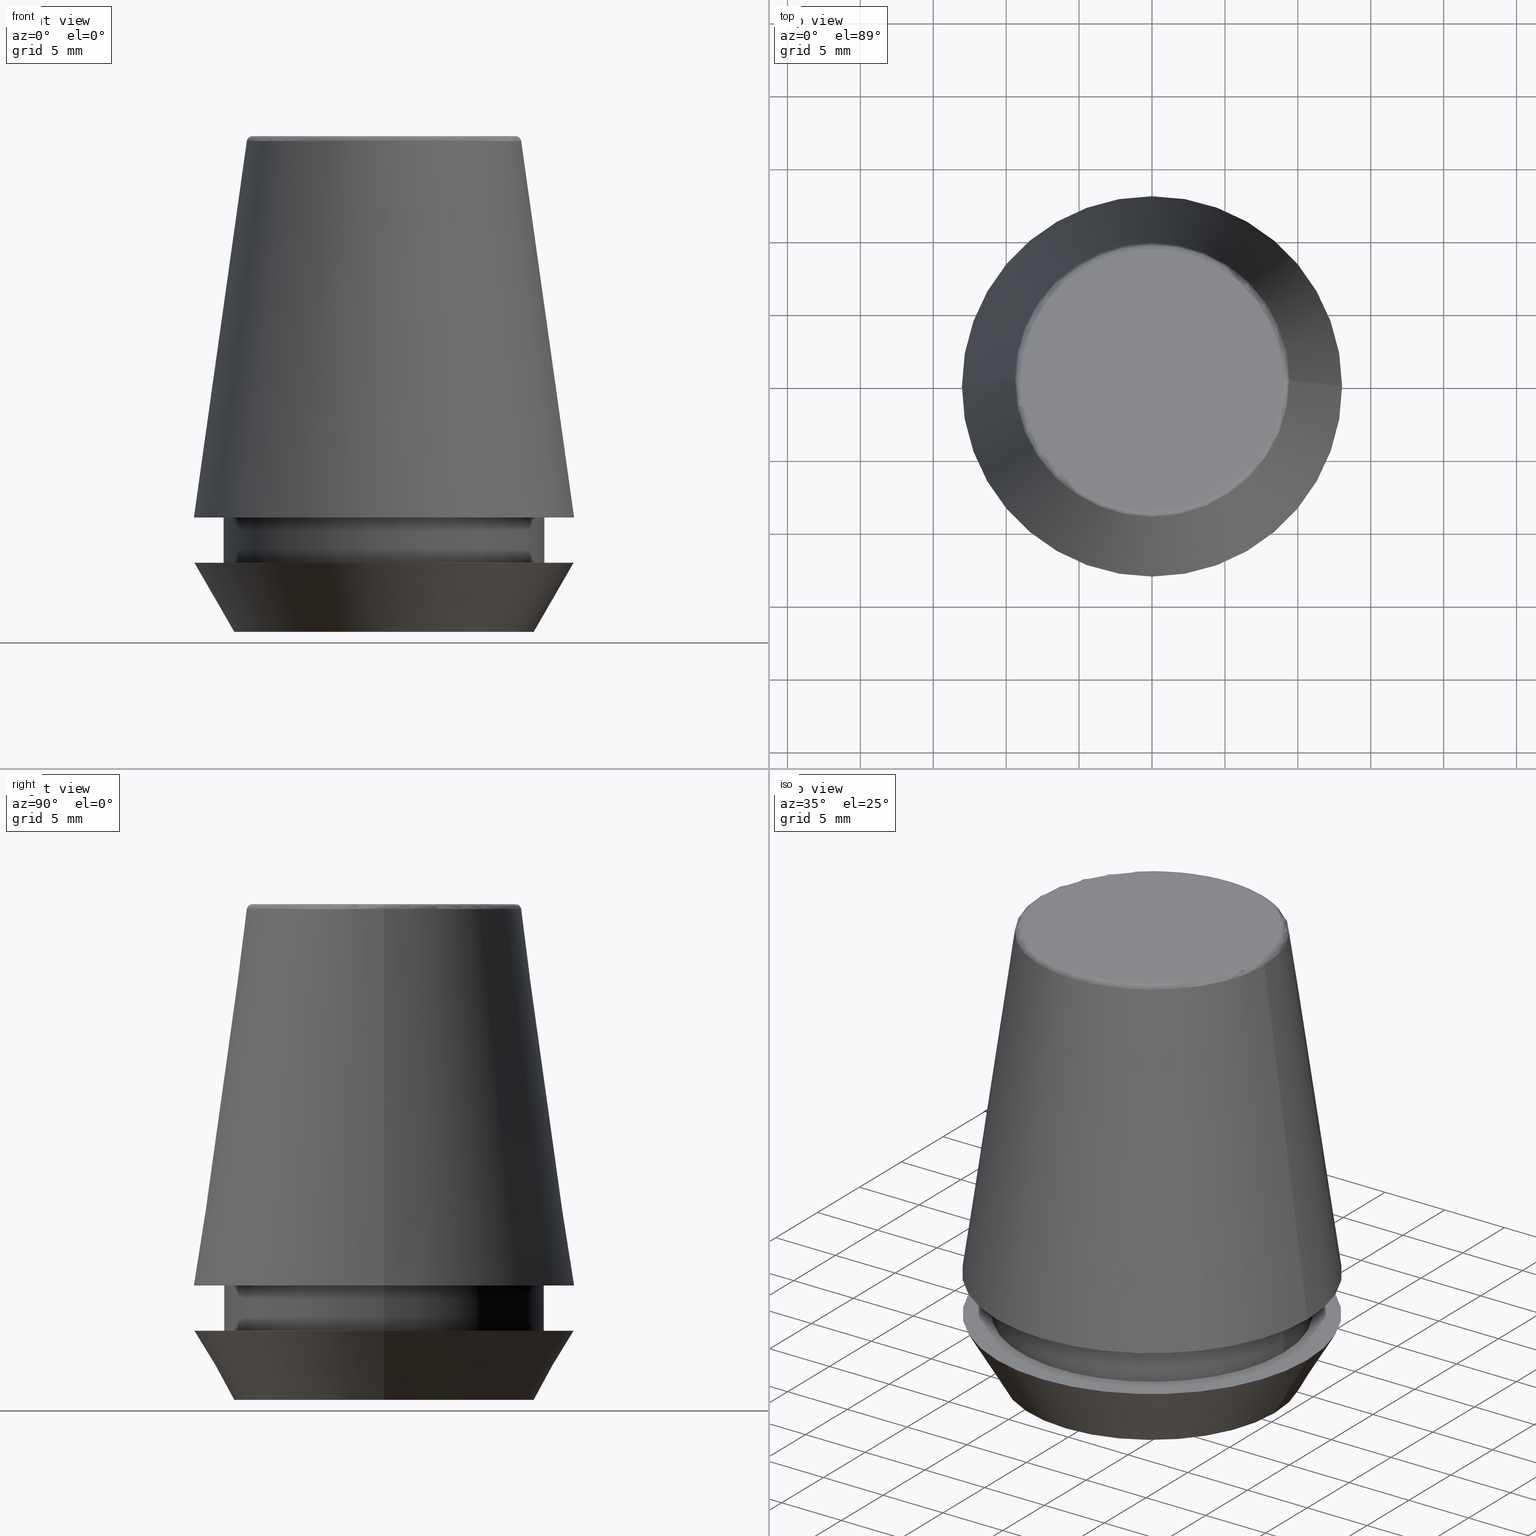
[diagram: canonical four-view strip — front | top / right | iso, engineering-drawing reading convention]
A machine part, canonical four-view strip (front | top / right | iso — engineering-drawing reading convention). The complete STEP part file that produces these views, byte-faithful:
ISO-10303-21;
HEADER;
FILE_DESCRIPTION (( 'STEP AP203' ),
    '1' );
FILE_NAME ('TAP COLLET ER 25G  6.3  X 5.0.STEP',
    '2019-04-09T09:55:54',
    ( '' ),
    ( '' ),
    'SwSTEP 2.0',
    'SolidWorks 2014',
    '' );
FILE_SCHEMA (( 'CONFIG_CONTROL_DESIGN' ));
ENDSEC;

DATA;
#1 = DIRECTION ( 'NONE',  ( 1.000000000000000000, 0.0000000000000000000, 0.0000000000000000000 ) ) ;
#2 = CARTESIAN_POINT ( 'NONE',  ( 0.0000000000000000000, 0.0000000000000000000, 33.65566924038402900 ) ) ;
#3 = ORIENTED_EDGE ( 'NONE', *, *, #218, .T. ) ;
#4 = CARTESIAN_POINT ( 'NONE',  ( 0.0000000000000000000, 0.0000000000000000000, 4.742050807568884500 ) ) ;
#5 = AXIS2_PLACEMENT_3D ( 'NONE', #154, #356, #94 ) ;
#6 = CC_DESIGN_PERSON_AND_ORGANIZATION_ASSIGNMENT ( #191, #219, ( #22 ) ) ;
#7 = DIRECTION ( 'NONE',  ( 1.224646799147353200E-016, 1.000000000000000000, 0.0000000000000000000 ) ) ;
#8 = COORDINATED_UNIVERSAL_TIME_OFFSET ( 5, 30, .AHEAD. ) ;
#9 = DIRECTION ( 'NONE',  ( -0.0000000000000000000, -0.0000000000000000000, 1.000000000000000000 ) ) ;
#10 = DIRECTION ( 'NONE',  ( -0.0000000000000000000, -0.0000000000000000000, 1.000000000000000000 ) ) ;
#11 =( GEOMETRIC_REPRESENTATION_CONTEXT ( 3 ) GLOBAL_UNCERTAINTY_ASSIGNED_CONTEXT ( ( #250 ) ) GLOBAL_UNIT_ASSIGNED_CONTEXT ( ( #288, #24, #52 ) ) REPRESENTATION_CONTEXT ( 'NONE', 'WORKASPACE' ) );
#12 = EDGE_LOOP ( 'NONE', ( #207, #27 ) ) ;
#13 = DIRECTION ( 'NONE',  ( 0.0000000000000000000, -0.0000000000000000000, 1.000000000000000000 ) ) ;
#14 = DESIGN_CONTEXT ( 'detailed design', #200, 'design' ) ;
#15 = ORIENTED_EDGE ( 'NONE', *, *, #232, .F. ) ;
#16 = ORIENTED_EDGE ( 'NONE', *, *, #201, .T. ) ;
#17 = DIRECTION ( 'NONE',  ( 1.000000000000000000, 0.0000000000000000000, 0.0000000000000000000 ) ) ;
#18 = ADVANCED_FACE ( 'NONE', ( #80 ), #193, .T. ) ;
#19 = CIRCLE ( 'NONE', #275, 11.00000000000000000 ) ;
#20 = ORIENTED_EDGE ( 'NONE', *, *, #316, .F. ) ;
#21 = COORDINATED_UNIVERSAL_TIME_OFFSET ( 5, 30, .AHEAD. ) ;
#22 = SECURITY_CLASSIFICATION ( '', '', #23 ) ;
#23 = SECURITY_CLASSIFICATION_LEVEL ( 'unclassified' ) ;
#24 =( NAMED_UNIT ( * ) PLANE_ANGLE_UNIT ( ) SI_UNIT ( $, .RADIAN. ) );
#25 = ORIENTED_EDGE ( 'NONE', *, *, #218, .F. ) ;
#26 = AXIS2_PLACEMENT_3D ( 'NONE', #87, #262, #39 ) ;
#27 = ORIENTED_EDGE ( 'NONE', *, *, #268, .F. ) ;
#28 = CARTESIAN_POINT ( 'NONE',  ( 0.0000000000000000000, 0.0000000000000000000, 7.842050807568876200 ) ) ;
#29 = DIRECTION ( 'NONE',  ( 1.000000000000000000, 0.0000000000000000000, 0.0000000000000000000 ) ) ;
#30 = MANIFOLD_SOLID_BREP ( 'Revolve1', #342 ) ;
#31 = CYLINDRICAL_SURFACE ( 'NONE', #169, 11.00000000000000000 ) ;
#32 = APPROVAL_PERSON_ORGANIZATION ( #143, #64, #344 ) ;
#33 = CARTESIAN_POINT ( 'NONE',  ( 0.0000000000000000000, 0.0000000000000000000, 4.742050807568884500 ) ) ;
#34 = ADVANCED_FACE ( 'NONE', ( #46 ), #282, .T. ) ;
#35 = CARTESIAN_POINT ( 'NONE',  ( 0.0000000000000000000, 0.0000000000000000000, 0.0000000000000000000 ) ) ;
#36 = DIRECTION ( 'NONE',  ( -0.0000000000000000000, -0.0000000000000000000, 1.000000000000000000 ) ) ;
#37 = DIRECTION ( 'NONE',  ( 0.0000000000000000000, 0.0000000000000000000, -1.000000000000000000 ) ) ;
#38 = VECTOR ( 'NONE', #47, 1000.000000000000000 ) ;
#39 = DIRECTION ( 'NONE',  ( 1.000000000000000000, 0.0000000000000000000, 0.0000000000000000000 ) ) ;
#40 = CARTESIAN_POINT ( 'NONE',  ( -9.408710285118862900, 0.0000000000000000000, 33.65566924038402900 ) ) ;
#41 = CONICAL_SURFACE ( 'NONE', #183, 13.03657776635556700, 0.1396263401595396500 ) ;
#42 = EDGE_LOOP ( 'NONE', ( #319, #112, #373, #351 ) ) ;
#43 = ORIENTED_EDGE ( 'NONE', *, *, #309, .F. ) ;
#44 = CC_DESIGN_PERSON_AND_ORGANIZATION_ASSIGNMENT ( #122, #54, ( #166 ) ) ;
#45 = CARTESIAN_POINT ( 'NONE',  ( 13.00000000000000000, 0.0000000000000000000, 4.742050807568884500 ) ) ;
#46 = FACE_OUTER_BOUND ( 'NONE', #75, .T. ) ;
#47 = DIRECTION ( 'NONE',  ( 0.1391731009600587800, 1.704378926181474000E-017, -0.9902680687415712500 ) ) ;
#48 = PERSON_AND_ORGANIZATION ( #163, #304 ) ;
#49 = ORIENTED_EDGE ( 'NONE', *, *, #256, .T. ) ;
#50 = ORIENTED_EDGE ( 'NONE', *, *, #188, .T. ) ;
#51 = PERSON_AND_ORGANIZATION ( #163, #304 ) ;
#52 =( NAMED_UNIT ( * ) SI_UNIT ( $, .STERADIAN. ) SOLID_ANGLE_UNIT ( ) );
#53 = ORIENTED_EDGE ( 'NONE', *, *, #320, .F. ) ;
#54 = PERSON_AND_ORGANIZATION_ROLE ( 'design_owner' ) ;
#55 = DIRECTION ( 'NONE',  ( 1.000000000000000000, 0.0000000000000000000, 0.0000000000000000000 ) ) ;
#56 = FACE_BOUND ( 'NONE', #220, .T. ) ;
#57 = CIRCLE ( 'NONE', #292, 9.012603057622234500 ) ;
#58 = LOCAL_TIME ( 15, 25, 54.00000000000000000, #195 ) ;
#59 = ORIENTED_EDGE ( 'NONE', *, *, #320, .T. ) ;
#60 = CC_DESIGN_APPROVAL ( #90, ( #261 ) ) ;
#61 = CYLINDRICAL_SURFACE ( 'NONE', #104, 11.00000000000000000 ) ;
#62 = VERTEX_POINT ( 'NONE', #252 ) ;
#63 = DIRECTION ( 'NONE',  ( -0.4999999999999957800, 6.123233995736714300E-017, 0.8660254037844410400 ) ) ;
#64 = APPROVAL ( #108, 'UNSPECIFIED' ) ;
#65 = CARTESIAN_POINT ( 'NONE',  ( -10.26217568973925200, 1.256754061072695800E-015, 0.0000000000000000000 ) ) ;
#66 = LINE ( 'NONE', #269, #285 ) ;
#67 = DIRECTION ( 'NONE',  ( 1.000000000000000000, 0.0000000000000000000, 0.0000000000000000000 ) ) ;
#68 = ADVANCED_FACE ( 'NONE', ( #349, #197 ), #279, .F. ) ;
#69 = CC_DESIGN_DATE_AND_TIME_ASSIGNMENT ( #206, #81, ( #22 ) ) ;
#70 = DIRECTION ( 'NONE',  ( -1.000000000000000000, 1.224646799147353200E-016, 0.0000000000000000000 ) ) ;
#71 = ORIENTED_EDGE ( 'NONE', *, *, #232, .T. ) ;
#72 = DIRECTION ( 'NONE',  ( 1.000000000000000000, 0.0000000000000000000, 0.0000000000000000000 ) ) ;
#73 = DATE_AND_TIME ( #170, #182 ) ;
#74 = DIRECTION ( 'NONE',  ( 1.000000000000000000, 0.0000000000000000000, 0.0000000000000000000 ) ) ;
#75 = EDGE_LOOP ( 'NONE', ( #43, #253, #216, #289 ) ) ;
#76 = DIRECTION ( 'NONE',  ( 1.000000000000000000, 0.0000000000000000000, 0.0000000000000000000 ) ) ;
#77 = FACE_OUTER_BOUND ( 'NONE', #42, .T. ) ;
#78 = VECTOR ( 'NONE', #36, 1000.000000000000000 ) ;
#79 = ORIENTED_EDGE ( 'NONE', *, *, #259, .F. ) ;
#80 = FACE_OUTER_BOUND ( 'NONE', #343, .T. ) ;
#81 = DATE_TIME_ROLE ( 'classification_date' ) ;
#82 = ADVANCED_FACE ( 'NONE', ( #130 ), #224, .T. ) ;
#83 = FACE_OUTER_BOUND ( 'NONE', #107, .T. ) ;
#84 = DIRECTION ( 'NONE',  ( 0.0000000000000000000, 0.0000000000000000000, -1.000000000000000000 ) ) ;
#85 = EDGE_LOOP ( 'NONE', ( #375, #312, #53, #20 ) ) ;
#86 = EDGE_LOOP ( 'NONE', ( #59, #16 ) ) ;
#87 = CARTESIAN_POINT ( 'NONE',  ( 0.0000000000000000000, 0.0000000000000000000, 0.0000000000000000000 ) ) ;
#88 = MECHANICAL_CONTEXT ( 'NONE', #352, 'mechanical' ) ;
#89 = CIRCLE ( 'NONE', #301, 13.00000000000000000 ) ;
#90 = APPROVAL ( #322, 'UNSPECIFIED' ) ;
#91 = ORIENTED_EDGE ( 'NONE', *, *, #259, .T. ) ;
#92 = VERTEX_POINT ( 'NONE', #306 ) ;
#93 = FACE_OUTER_BOUND ( 'NONE', #281, .T. ) ;
#94 = DIRECTION ( 'NONE',  ( 1.000000000000000000, 0.0000000000000000000, 0.0000000000000000000 ) ) ;
#95 = LOCAL_TIME ( 15, 25, 54.00000000000000000, #204 ) ;
#96 = DIRECTION ( 'NONE',  ( -0.0000000000000000000, -0.0000000000000000000, 1.000000000000000000 ) ) ;
#97 = DIRECTION ( 'NONE',  ( -1.000000000000000000, 0.0000000000000000000, -0.0000000000000000000 ) ) ;
#98 = CIRCLE ( 'NONE', #310, 11.00000000000000000 ) ;
#99 = CARTESIAN_POINT ( 'NONE',  ( 13.03657776635556700, 1.596520323340289600E-015, 7.842050807568876200 ) ) ;
#100 = DIRECTION ( 'NONE',  ( -0.0000000000000000000, -0.0000000000000000000, 1.000000000000000000 ) ) ;
#101 = CARTESIAN_POINT ( 'NONE',  ( 0.0000000000000000000, 0.0000000000000000000, 7.842050807568876200 ) ) ;
#102 = DIRECTION ( 'NONE',  ( -0.0000000000000000000, -0.0000000000000000000, 1.000000000000000000 ) ) ;
#103 = APPROVAL_DATE_TIME ( #73, #64 ) ;
#104 = AXIS2_PLACEMENT_3D ( 'NONE', #280, #221, #121 ) ;
#105 = EDGE_LOOP ( 'NONE', ( #71, #124, #276, #79 ) ) ;
#106 = CIRCLE ( 'NONE', #325, 9.408710285118862900 ) ;
#107 = EDGE_LOOP ( 'NONE', ( #270, #291 ) ) ;
#108 = APPROVAL_STATUS ( 'not_yet_approved' ) ;
#109 = CALENDAR_DATE ( 2019, 9, 4 ) ;
#110 = DIRECTION ( 'NONE',  ( -0.0000000000000000000, -0.0000000000000000000, 1.000000000000000000 ) ) ;
#111 = PERSON_AND_ORGANIZATION ( #163, #304 ) ;
#112 = ORIENTED_EDGE ( 'NONE', *, *, #239, .T. ) ;
#113 = PERSON_AND_ORGANIZATION ( #163, #304 ) ;
#114 = DIRECTION ( 'NONE',  ( -0.0000000000000000000, -0.0000000000000000000, 1.000000000000000000 ) ) ;
#115 = CIRCLE ( 'NONE', #355, 9.408710285118862900 ) ;
#116 = APPROVAL_STATUS ( 'not_yet_approved' ) ;
#117 = VERTEX_POINT ( 'NONE', #248 ) ;
#118 = APPROVAL_ROLE ( '' ) ;
#119 = APPROVAL_DATE_TIME ( #147, #90 ) ;
#120 = LINE ( 'NONE', #65, #362 ) ;
#121 = DIRECTION ( 'NONE',  ( 1.000000000000000000, 0.0000000000000000000, 0.0000000000000000000 ) ) ;
#122 = PERSON_AND_ORGANIZATION ( #163, #304 ) ;
#123 = ADVANCED_FACE ( 'NONE', ( #378 ), #41, .T. ) ;
#124 = ORIENTED_EDGE ( 'NONE', *, *, #138, .T. ) ;
#125 = CARTESIAN_POINT ( 'NONE',  ( -10.26217568973925200, 1.424397449982127500E-015, 0.0000000000000000000 ) ) ;
#126 = VERTEX_POINT ( 'NONE', #157 ) ;
#127 = CARTESIAN_POINT ( 'NONE',  ( 11.00000000000000000, 0.0000000000000000000, 4.742050807568884500 ) ) ;
#128 = CARTESIAN_POINT ( 'NONE',  ( 0.0000000000000000000, 13.00000000000000000, 4.742050807568884500 ) ) ;
#129 = DIRECTION ( 'NONE',  ( 0.0000000000000000000, 0.0000000000000000000, -1.000000000000000000 ) ) ;
#130 = FACE_OUTER_BOUND ( 'NONE', #178, .T. ) ;
#131 = SHAPE_DEFINITION_REPRESENTATION ( #222, #385 ) ;
#132 = DIRECTION ( 'NONE',  ( 0.0000000000000000000, 0.0000000000000000000, -1.000000000000000000 ) ) ;
#133 = VECTOR ( 'NONE', #174, 1000.000000000000200 ) ;
#134 = DATE_AND_TIME ( #243, #198 ) ;
#135 = VERTEX_POINT ( 'NONE', #335 ) ;
#136 = AXIS2_PLACEMENT_3D ( 'NONE', #370, #110, #74 ) ;
#137 = AXIS2_PLACEMENT_3D ( 'NONE', #336, #369, #17 ) ;
#138 = EDGE_CURVE ( 'NONE', #371, #92, #313, .T. ) ;
#139 = DIRECTION ( 'NONE',  ( 1.000000000000000000, 0.0000000000000000000, 0.0000000000000000000 ) ) ;
#140 = ADVANCED_FACE ( 'NONE', ( #215 ), #31, .T. ) ;
#141 = CC_DESIGN_APPROVAL ( #64, ( #22 ) ) ;
#142 = LINE ( 'NONE', #234, #133 ) ;
#143 = PERSON_AND_ORGANIZATION ( #163, #304 ) ;
#144 = APPLICATION_PROTOCOL_DEFINITION ( 'international standard', 'config_control_design', 1994, #200 ) ;
#145 = EDGE_LOOP ( 'NONE', ( #210, #364, #162, #3 ) ) ;
#146 = CIRCLE ( 'NONE', #294, 10.26217568973925200 ) ;
#147 = DATE_AND_TIME ( #386, #95 ) ;
#148 = DIRECTION ( 'NONE',  ( -0.0000000000000000000, -0.0000000000000000000, 1.000000000000000000 ) ) ;
#149 = CIRCLE ( 'NONE', #298, 13.03657776635556700 ) ;
#150 = AXIS2_PLACEMENT_3D ( 'NONE', #368, #37, #308 ) ;
#151 = DIRECTION ( 'NONE',  ( 1.000000000000000000, 0.0000000000000000000, 0.0000000000000000000 ) ) ;
#152 = APPLICATION_PROTOCOL_DEFINITION ( 'international standard', 'config_control_design', 1994, #352 ) ;
#153 = CARTESIAN_POINT ( 'NONE',  ( 9.012603057622234500, 0.0000000000000000000, 34.00000000000000000 ) ) ;
#154 = CARTESIAN_POINT ( 'NONE',  ( 0.0000000000000000000, 0.0000000000000000000, 0.0000000000000000000 ) ) ;
#155 = DIRECTION ( 'NONE',  ( 1.000000000000000000, 0.0000000000000000000, 0.0000000000000000000 ) ) ;
#156 = CIRCLE ( 'NONE', #290, 10.26217568973925200 ) ;
#157 = CARTESIAN_POINT ( 'NONE',  ( -13.00000000000000000, 1.592040838891559100E-015, 4.742050807568884500 ) ) ;
#158 = ORIENTED_EDGE ( 'NONE', *, *, #239, .F. ) ;
#159 = DIRECTION ( 'NONE',  ( -1.000000000000000000, 0.0000000000000000000, 0.0000000000000000000 ) ) ;
#160 = AXIS2_PLACEMENT_3D ( 'NONE', #128, #244, #97 ) ;
#161 = DIRECTION ( 'NONE',  ( -0.0000000000000000000, -0.0000000000000000000, 1.000000000000000000 ) ) ;
#162 = ORIENTED_EDGE ( 'NONE', *, *, #245, .T. ) ;
#163 = PERSON ( 'UNSPECIFIED', 'UNSPECIFIED', 'UNSPECIFIED', ('UNSPECIFIED'), ('UNSPECIFIED'), ('UNSPECIFIED') ) ;
#164 = FACE_OUTER_BOUND ( 'NONE', #85, .T. ) ;
#165 = CALENDAR_DATE ( 2019, 9, 4 ) ;
#166 = PRODUCT ( 'TAP COLLET ER 25G  6.3  X 5.0', 'TAP COLLET ER 25G  6.3  X 5.0', '', ( #88 ) ) ;
#167 = VERTEX_POINT ( 'NONE', #99 ) ;
#168 = DIRECTION ( 'NONE',  ( 0.0000000000000000000, -0.0000000000000000000, 1.000000000000000000 ) ) ;
#169 = AXIS2_PLACEMENT_3D ( 'NONE', #277, #10, #184 ) ;
#170 = CALENDAR_DATE ( 2019, 9, 4 ) ;
#171 = VERTEX_POINT ( 'NONE', #153 ) ;
#172 = CARTESIAN_POINT ( 'NONE',  ( -11.00000000000000000, 1.347111479062088400E-015, 4.742050807568884500 ) ) ;
#173 = PLANE ( 'NONE',  #287 ) ;
#174 = DIRECTION ( 'NONE',  ( 0.4999999999999957800, 0.0000000000000000000, 0.8660254037844410400 ) ) ;
#175 = ADVANCED_FACE ( 'NONE', ( #56, #83 ), #303, .F. ) ;
#176 = APPROVAL_DATE_TIME ( #134, #331 ) ;
#177 = CARTESIAN_POINT ( 'NONE',  ( 0.0000000000000000000, 0.0000000000000000000, 4.742050807568884500 ) ) ;
#178 = EDGE_LOOP ( 'NONE', ( #187, #199, #380, #190 ) ) ;
#179 = CARTESIAN_POINT ( 'NONE',  ( -13.03657776635556700, 0.0000000000000000000, 7.842050807568876200 ) ) ;
#180 = DIRECTION ( 'NONE',  ( -0.0000000000000000000, -0.0000000000000000000, 1.000000000000000000 ) ) ;
#181 = DIRECTION ( 'NONE',  ( -0.0000000000000000000, -0.0000000000000000000, 1.000000000000000000 ) ) ;
#182 = LOCAL_TIME ( 15, 25, 54.00000000000000000, #8 ) ;
#183 = AXIS2_PLACEMENT_3D ( 'NONE', #101, #129, #159 ) ;
#184 = DIRECTION ( 'NONE',  ( 1.000000000000000000, 0.0000000000000000000, 0.0000000000000000000 ) ) ;
#185 = CARTESIAN_POINT ( 'NONE',  ( 0.0000000000000000000, 0.0000000000000000000, 34.00000000000000000 ) ) ;
#186 = FACE_OUTER_BOUND ( 'NONE', #12, .T. ) ;
#187 = ORIENTED_EDGE ( 'NONE', *, *, #226, .F. ) ;
#188 = EDGE_CURVE ( 'NONE', #62, #92, #19, .T. ) ;
#189 = EDGE_CURVE ( 'NONE', #126, #339, #274, .T. ) ;
#190 = ORIENTED_EDGE ( 'NONE', *, *, #245, .F. ) ;
#191 = PERSON_AND_ORGANIZATION ( #163, #304 ) ;
#192 = EDGE_CURVE ( 'NONE', #334, #117, #115, .T. ) ;
#193 = CONICAL_SURFACE ( 'NONE', #137, 10.26217568973925200, 0.5235987755982940400 ) ;
#194 = DIRECTION ( 'NONE',  ( -1.000000000000000000, 0.0000000000000000000, -0.0000000000000000000 ) ) ;
#195 = COORDINATED_UNIVERSAL_TIME_OFFSET ( 5, 30, .AHEAD. ) ;
#196 = VERTEX_POINT ( 'NONE', #127 ) ;
#197 = FACE_BOUND ( 'NONE', #246, .T. ) ;
#198 = LOCAL_TIME ( 15, 25, 54.00000000000000000, #21 ) ;
#199 = ORIENTED_EDGE ( 'NONE', *, *, #347, .T. ) ;
#200 = APPLICATION_CONTEXT ( 'configuration controlled 3d designs of mechanical parts and assemblies' ) ;
#201 = EDGE_CURVE ( 'NONE', #135, #171, #357, .T. ) ;
#202 = CARTESIAN_POINT ( 'NONE',  ( 0.0000000000000000000, 0.0000000000000000000, 0.0000000000000000000 ) ) ;
#203 = CC_DESIGN_DATE_AND_TIME_ASSIGNMENT ( #260, #354, ( #261 ) ) ;
#204 = COORDINATED_UNIVERSAL_TIME_OFFSET ( 5, 30, .AHEAD. ) ;
#205 = DIRECTION ( 'NONE',  ( -0.0000000000000000000, -0.0000000000000000000, 1.000000000000000000 ) ) ;
#206 = DATE_AND_TIME ( #165, #58 ) ;
#207 = ORIENTED_EDGE ( 'NONE', *, *, #305, .F. ) ;
#208 = DIRECTION ( 'NONE',  ( 1.000000000000000000, 0.0000000000000000000, 0.0000000000000000000 ) ) ;
#209 = PRODUCT_DEFINITION_FORMATION_WITH_SPECIFIED_SOURCE ( 'ANY', '', #166, .NOT_KNOWN. ) ;
#210 = ORIENTED_EDGE ( 'NONE', *, *, #347, .F. ) ;
#211 = AXIS2_PLACEMENT_3D ( 'NONE', #337, #84, #194 ) ;
#212 = PLANE ( 'NONE',  #211 ) ;
#213 = AXIS2_PLACEMENT_3D ( 'NONE', #271, #180, #1 ) ;
#214 = VECTOR ( 'NONE', #387, 1000.000000000000000 ) ;
#215 = FACE_OUTER_BOUND ( 'NONE', #105, .T. ) ;
#216 = ORIENTED_EDGE ( 'NONE', *, *, #316, .T. ) ;
#217 = ORIENTED_EDGE ( 'NONE', *, *, #242, .T. ) ;
#218 = EDGE_CURVE ( 'NONE', #315, #167, #149, .T. ) ;
#219 = PERSON_AND_ORGANIZATION_ROLE ( 'classification_officer' ) ;
#220 = EDGE_LOOP ( 'NONE', ( #15, #383 ) ) ;
#221 = DIRECTION ( 'NONE',  ( -0.0000000000000000000, -0.0000000000000000000, 1.000000000000000000 ) ) ;
#222 = PRODUCT_DEFINITION_SHAPE ( 'NONE', 'NONE',  #261 ) ;
#223 = LINE ( 'NONE', #286, #38 ) ;
#224 = CONICAL_SURFACE ( 'NONE', #150, 13.03657776635556700, 0.1396263401595396500 ) ;
#225 = VERTEX_POINT ( 'NONE', #125 ) ;
#226 = EDGE_CURVE ( 'NONE', #117, #334, #106, .T. ) ;
#227 = PERSON_AND_ORGANIZATION_ROLE ( 'design_supplier' ) ;
#228 = PERSON_AND_ORGANIZATION_ROLE ( 'creator' ) ;
#229 = EDGE_CURVE ( 'NONE', #167, #315, #367, .T. ) ;
#230 = DIRECTION ( 'NONE',  ( -0.0000000000000000000, -0.0000000000000000000, 1.000000000000000000 ) ) ;
#231 = ORIENTED_EDGE ( 'NONE', *, *, #258, .T. ) ;
#232 = EDGE_CURVE ( 'NONE', #196, #371, #238, .T. ) ;
#233 = AXIS2_PLACEMENT_3D ( 'NONE', #376, #13, #76 ) ;
#234 = CARTESIAN_POINT ( 'NONE',  ( 10.26217568973925200, 0.0000000000000000000, 0.0000000000000000000 ) ) ;
#235 = DIRECTION ( 'NONE',  ( 1.000000000000000000, 0.0000000000000000000, 0.0000000000000000000 ) ) ;
#236 = CIRCLE ( 'NONE', #346, 11.00000000000000000 ) ;
#237 = CARTESIAN_POINT ( 'NONE',  ( 0.0000000000000000000, 0.0000000000000000000, 33.65566924038402900 ) ) ;
#238 = CIRCLE ( 'NONE', #296, 11.00000000000000000 ) ;
#239 = EDGE_CURVE ( 'NONE', #225, #126, #120, .T. ) ;
#240 = DIRECTION ( 'NONE',  ( -0.0000000000000000000, -0.0000000000000000000, 1.000000000000000000 ) ) ;
#241 = DIRECTION ( 'NONE',  ( 1.000000000000000000, 0.0000000000000000000, 0.0000000000000000000 ) ) ;
#242 = EDGE_CURVE ( 'NONE', #300, #339, #142, .T. ) ;
#243 = CALENDAR_DATE ( 2019, 9, 4 ) ;
#244 = DIRECTION ( 'NONE',  ( 0.0000000000000000000, 0.0000000000000000000, -1.000000000000000000 ) ) ;
#245 = EDGE_CURVE ( 'NONE', #334, #315, #66, .T. ) ;
#246 = EDGE_LOOP ( 'NONE', ( #50, #231 ) ) ;
#247 = DIRECTION ( 'NONE',  ( -0.0000000000000000000, -0.0000000000000000000, 1.000000000000000000 ) ) ;
#248 = CARTESIAN_POINT ( 'NONE',  ( 9.408710285118862900, 1.374377508408924700E-015, 33.65566924038402900 ) ) ;
#249 = DIRECTION ( 'NONE',  ( 0.0000000000000000000, -1.000000000000000000, 0.0000000000000000000 ) ) ;
#250 = UNCERTAINTY_MEASURE_WITH_UNIT (LENGTH_MEASURE( 1.000000000000000100E-005 ), #288, 'distance_accuracy_value', 'NONE');
#251 = DIRECTION ( 'NONE',  ( -0.0000000000000000000, -0.0000000000000000000, 1.000000000000000000 ) ) ;
#252 = CARTESIAN_POINT ( 'NONE',  ( 11.00000000000000000, 0.0000000000000000000, 7.842050807568890400 ) ) ;
#253 = ORIENTED_EDGE ( 'NONE', *, *, #192, .T. ) ;
#254 = DIRECTION ( 'NONE',  ( 1.000000000000000000, 0.0000000000000000000, 0.0000000000000000000 ) ) ;
#255 = PRODUCT_RELATED_PRODUCT_CATEGORY ( 'detail', '', ( #166 ) ) ;
#256 = EDGE_CURVE ( 'NONE', #371, #196, #98, .T. ) ;
#257 = ORIENTED_EDGE ( 'NONE', *, *, #258, .F. ) ;
#258 = EDGE_CURVE ( 'NONE', #92, #62, #236, .T. ) ;
#259 = EDGE_CURVE ( 'NONE', #196, #62, #341, .T. ) ;
#260 = DATE_AND_TIME ( #109, #338 ) ;
#261 = PRODUCT_DEFINITION ( 'UNKNOWN', '', #209, #14 ) ;
#262 = DIRECTION ( 'NONE',  ( -0.0000000000000000000, -0.0000000000000000000, 1.000000000000000000 ) ) ;
#263 = CC_DESIGN_PERSON_AND_ORGANIZATION_ASSIGNMENT ( #48, #228, ( #261 ) ) ;
#264 = FACE_OUTER_BOUND ( 'NONE', #86, .T. ) ;
#265 = ORIENTED_EDGE ( 'NONE', *, *, #229, .F. ) ;
#266 = EDGE_CURVE ( 'NONE', #339, #126, #89, .T. ) ;
#267 = CARTESIAN_POINT ( 'NONE',  ( 0.0000000000000000000, 0.0000000000000000000, 7.842050807568890400 ) ) ;
#268 = EDGE_CURVE ( 'NONE', #225, #300, #146, .T. ) ;
#269 = CARTESIAN_POINT ( 'NONE',  ( -13.03657776635556700, 0.0000000000000000000, 7.842050807568876200 ) ) ;
#270 = ORIENTED_EDGE ( 'NONE', *, *, #266, .T. ) ;
#271 = CARTESIAN_POINT ( 'NONE',  ( 0.0000000000000000000, 0.0000000000000000000, 34.00000000000000000 ) ) ;
#272 = ADVANCED_FACE ( 'NONE', ( #186 ), #173, .F. ) ;
#273 = DIRECTION ( 'NONE',  ( -0.0000000000000000000, -0.0000000000000000000, 1.000000000000000000 ) ) ;
#274 = CIRCLE ( 'NONE', #324, 13.00000000000000000 ) ;
#275 = AXIS2_PLACEMENT_3D ( 'NONE', #365, #181, #241 ) ;
#276 = ORIENTED_EDGE ( 'NONE', *, *, #188, .F. ) ;
#277 = CARTESIAN_POINT ( 'NONE',  ( 0.0000000000000000000, 0.0000000000000000000, 101.8074564848000400 ) ) ;
#278 = AXIS2_PLACEMENT_3D ( 'NONE', #284, #247, #155 ) ;
#279 = PLANE ( 'NONE',  #233 ) ;
#280 = CARTESIAN_POINT ( 'NONE',  ( 0.0000000000000000000, 0.0000000000000000000, 101.8074564848000400 ) ) ;
#281 = EDGE_LOOP ( 'NONE', ( #317, #49, #91, #257 ) ) ;
#282 = TOROIDAL_SURFACE ( 'NONE', #136, 9.012603057622234500, 0.4000000000000009700 ) ;
#283 = ORIENTED_EDGE ( 'NONE', *, *, #268, .T. ) ;
#284 = CARTESIAN_POINT ( 'NONE',  ( 0.0000000000000000000, 0.0000000000000000000, 33.60000000000000100 ) ) ;
#285 = VECTOR ( 'NONE', #348, 1000.000000000000000 ) ;
#286 = CARTESIAN_POINT ( 'NONE',  ( 13.03657776635556700, 1.596520323340289600E-015, 7.842050807568876200 ) ) ;
#287 = AXIS2_PLACEMENT_3D ( 'NONE', #202, #168, #139 ) ;
#288 =( LENGTH_UNIT ( ) NAMED_UNIT ( * ) SI_UNIT ( .MILLI., .METRE. ) );
#289 = ORIENTED_EDGE ( 'NONE', *, *, #201, .F. ) ;
#290 = AXIS2_PLACEMENT_3D ( 'NONE', #329, #96, #151 ) ;
#291 = ORIENTED_EDGE ( 'NONE', *, *, #189, .T. ) ;
#292 = AXIS2_PLACEMENT_3D ( 'NONE', #185, #251, #340 ) ;
#293 = APPROVAL_ROLE ( '' ) ;
#294 = AXIS2_PLACEMENT_3D ( 'NONE', #35, #9, #208 ) ;
#295 = CARTESIAN_POINT ( 'NONE',  ( 10.26217568973925200, 0.0000000000000000000, 0.0000000000000000000 ) ) ;
#296 = AXIS2_PLACEMENT_3D ( 'NONE', #177, #114, #235 ) ;
#297 = ADVANCED_FACE ( 'NONE', ( #164 ), #314, .T. ) ;
#298 = AXIS2_PLACEMENT_3D ( 'NONE', #327, #148, #29 ) ;
#299 = DIRECTION ( 'NONE',  ( 1.000000000000000000, 0.0000000000000000000, 0.0000000000000000000 ) ) ;
#300 = VERTEX_POINT ( 'NONE', #295 ) ;
#301 = AXIS2_PLACEMENT_3D ( 'NONE', #4, #100, #72 ) ;
#302 = DIRECTION ( 'NONE',  ( 1.000000000000000000, 0.0000000000000000000, 0.0000000000000000000 ) ) ;
#303 = PLANE ( 'NONE',  #160 ) ;
#304 = ORGANIZATION ( 'UNSPECIFIED', 'UNSPECIFIED', '' ) ;
#305 = EDGE_CURVE ( 'NONE', #300, #225, #156, .T. ) ;
#306 = CARTESIAN_POINT ( 'NONE',  ( -11.00000000000000000, 1.347111479062088400E-015, 7.842050807568890400 ) ) ;
#307 = PERSON_AND_ORGANIZATION ( #163, #304 ) ;
#308 = DIRECTION ( 'NONE',  ( -1.000000000000000000, 0.0000000000000000000, 0.0000000000000000000 ) ) ;
#309 = EDGE_CURVE ( 'NONE', #334, #135, #311, .T. ) ;
#310 = AXIS2_PLACEMENT_3D ( 'NONE', #345, #161, #384 ) ;
#311 = CIRCLE ( 'NONE', #361, 0.4000000000000010200 ) ;
#312 = ORIENTED_EDGE ( 'NONE', *, *, #309, .T. ) ;
#313 = LINE ( 'NONE', #366, #78 ) ;
#314 = TOROIDAL_SURFACE ( 'NONE', #278, 9.012603057622234500, 0.4000000000000009700 ) ;
#315 = VERTEX_POINT ( 'NONE', #179 ) ;
#316 = EDGE_CURVE ( 'NONE', #117, #171, #318, .T. ) ;
#317 = ORIENTED_EDGE ( 'NONE', *, *, #138, .F. ) ;
#318 = CIRCLE ( 'NONE', #360, 0.3999999999999975800 ) ;
#319 = ORIENTED_EDGE ( 'NONE', *, *, #305, .T. ) ;
#320 = EDGE_CURVE ( 'NONE', #171, #135, #57, .T. ) ;
#321 = AXIS2_PLACEMENT_3D ( 'NONE', #28, #102, #254 ) ;
#322 = APPROVAL_STATUS ( 'not_yet_approved' ) ;
#323 = PERSON_AND_ORGANIZATION_ROLE ( 'creator' ) ;
#324 = AXIS2_PLACEMENT_3D ( 'NONE', #33, #240, #67 ) ;
#325 = AXIS2_PLACEMENT_3D ( 'NONE', #237, #205, #299 ) ;
#326 = EDGE_LOOP ( 'NONE', ( #25, #265 ) ) ;
#327 = CARTESIAN_POINT ( 'NONE',  ( 0.0000000000000000000, 0.0000000000000000000, 7.842050807568876200 ) ) ;
#328 = APPROVAL_PERSON_ORGANIZATION ( #307, #331, #118 ) ;
#329 = CARTESIAN_POINT ( 'NONE',  ( 0.0000000000000000000, 0.0000000000000000000, 0.0000000000000000000 ) ) ;
#330 = CC_DESIGN_PERSON_AND_ORGANIZATION_ASSIGNMENT ( #111, #323, ( #209 ) ) ;
#331 = APPROVAL ( #116, 'UNSPECIFIED' ) ;
#332 = CC_DESIGN_APPROVAL ( #331, ( #209 ) ) ;
#333 = CARTESIAN_POINT ( 'NONE',  ( -9.012603057622234500, 1.103725548650271700E-015, 33.60000000000000100 ) ) ;
#334 = VERTEX_POINT ( 'NONE', #40 ) ;
#335 = CARTESIAN_POINT ( 'NONE',  ( -9.012603057622234500, 1.127980121063915600E-015, 34.00000000000000000 ) ) ;
#336 = CARTESIAN_POINT ( 'NONE',  ( 0.0000000000000000000, 0.0000000000000000000, 0.0000000000000000000 ) ) ;
#337 = CARTESIAN_POINT ( 'NONE',  ( 0.0000000000000000000, 9.012603057622234500, 34.00000000000000000 ) ) ;
#338 = LOCAL_TIME ( 15, 25, 54.00000000000000000, #379 ) ;
#339 = VERTEX_POINT ( 'NONE', #45 ) ;
#340 = DIRECTION ( 'NONE',  ( 1.000000000000000000, 0.0000000000000000000, 0.0000000000000000000 ) ) ;
#341 = LINE ( 'NONE', #377, #214 ) ;
#342 = CLOSED_SHELL ( 'NONE', ( #297, #82, #140, #363, #272, #18, #175, #381, #68, #123, #34, #358 ) ) ;
#343 = EDGE_LOOP ( 'NONE', ( #158, #283, #217, #374 ) ) ;
#344 = APPROVAL_ROLE ( '' ) ;
#345 = CARTESIAN_POINT ( 'NONE',  ( 0.0000000000000000000, 0.0000000000000000000, 4.742050807568884500 ) ) ;
#346 = AXIS2_PLACEMENT_3D ( 'NONE', #267, #230, #55 ) ;
#347 = EDGE_CURVE ( 'NONE', #117, #167, #223, .T. ) ;
#348 = DIRECTION ( 'NONE',  ( -0.1391731009600587800, 0.0000000000000000000, -0.9902680687415712500 ) ) ;
#349 = FACE_OUTER_BOUND ( 'NONE', #326, .T. ) ;
#350 = CC_DESIGN_PERSON_AND_ORGANIZATION_ASSIGNMENT ( #51, #227, ( #209 ) ) ;
#351 = ORIENTED_EDGE ( 'NONE', *, *, #242, .F. ) ;
#352 = APPLICATION_CONTEXT ( 'configuration controlled 3d designs of mechanical parts and assemblies' ) ;
#353 = CONICAL_SURFACE ( 'NONE', #26, 10.26217568973925200, 0.5235987755982940400 ) ;
#354 = DATE_TIME_ROLE ( 'creation_date' ) ;
#355 = AXIS2_PLACEMENT_3D ( 'NONE', #2, #273, #302 ) ;
#356 = DIRECTION ( 'NONE',  ( 0.0000000000000000000, 0.0000000000000000000, 1.000000000000000000 ) ) ;
#357 = CIRCLE ( 'NONE', #213, 9.012603057622234500 ) ;
#358 = ADVANCED_FACE ( 'NONE', ( #264 ), #212, .F. ) ;
#359 = APPROVAL_PERSON_ORGANIZATION ( #113, #90, #293 ) ;
#360 = AXIS2_PLACEMENT_3D ( 'NONE', #382, #249, #132 ) ;
#361 = AXIS2_PLACEMENT_3D ( 'NONE', #333, #7, #70 ) ;
#362 = VECTOR ( 'NONE', #63, 1000.000000000000200 ) ;
#363 = ADVANCED_FACE ( 'NONE', ( #77 ), #353, .T. ) ;
#364 = ORIENTED_EDGE ( 'NONE', *, *, #192, .F. ) ;
#365 = CARTESIAN_POINT ( 'NONE',  ( 0.0000000000000000000, 0.0000000000000000000, 7.842050807568890400 ) ) ;
#366 = CARTESIAN_POINT ( 'NONE',  ( -11.00000000000000000, 1.347111479062088400E-015, 101.8074564848000400 ) ) ;
#367 = CIRCLE ( 'NONE', #321, 13.03657776635556700 ) ;
#368 = CARTESIAN_POINT ( 'NONE',  ( 0.0000000000000000000, 0.0000000000000000000, 7.842050807568876200 ) ) ;
#369 = DIRECTION ( 'NONE',  ( -0.0000000000000000000, -0.0000000000000000000, 1.000000000000000000 ) ) ;
#370 = CARTESIAN_POINT ( 'NONE',  ( 0.0000000000000000000, 0.0000000000000000000, 33.60000000000000100 ) ) ;
#371 = VERTEX_POINT ( 'NONE', #172 ) ;
#372 = CC_DESIGN_SECURITY_CLASSIFICATION ( #22, ( #209 ) ) ;
#373 = ORIENTED_EDGE ( 'NONE', *, *, #266, .F. ) ;
#374 = ORIENTED_EDGE ( 'NONE', *, *, #189, .F. ) ;
#375 = ORIENTED_EDGE ( 'NONE', *, *, #226, .T. ) ;
#376 = CARTESIAN_POINT ( 'NONE',  ( 0.0000000000000000000, 13.03657776635556700, 7.842050807568883300 ) ) ;
#377 = CARTESIAN_POINT ( 'NONE',  ( 11.00000000000000000, 0.0000000000000000000, 101.8074564848000400 ) ) ;
#378 = FACE_OUTER_BOUND ( 'NONE', #145, .T. ) ;
#379 = COORDINATED_UNIVERSAL_TIME_OFFSET ( 5, 30, .AHEAD. ) ;
#380 = ORIENTED_EDGE ( 'NONE', *, *, #229, .T. ) ;
#381 = ADVANCED_FACE ( 'NONE', ( #93 ), #61, .T. ) ;
#382 = CARTESIAN_POINT ( 'NONE',  ( 9.012603057622234500, 0.0000000000000000000, 33.60000000000000100 ) ) ;
#383 = ORIENTED_EDGE ( 'NONE', *, *, #256, .F. ) ;
#384 = DIRECTION ( 'NONE',  ( 1.000000000000000000, 0.0000000000000000000, 0.0000000000000000000 ) ) ;
#385 = ADVANCED_BREP_SHAPE_REPRESENTATION ( 'TAP COLLET ER 25G  6.3  X 5.0', ( #30, #5 ), #11 ) ;
#386 = CALENDAR_DATE ( 2019, 9, 4 ) ;
#387 = DIRECTION ( 'NONE',  ( -0.0000000000000000000, -0.0000000000000000000, 1.000000000000000000 ) ) ;
ENDSEC;
END-ISO-10303-21;
